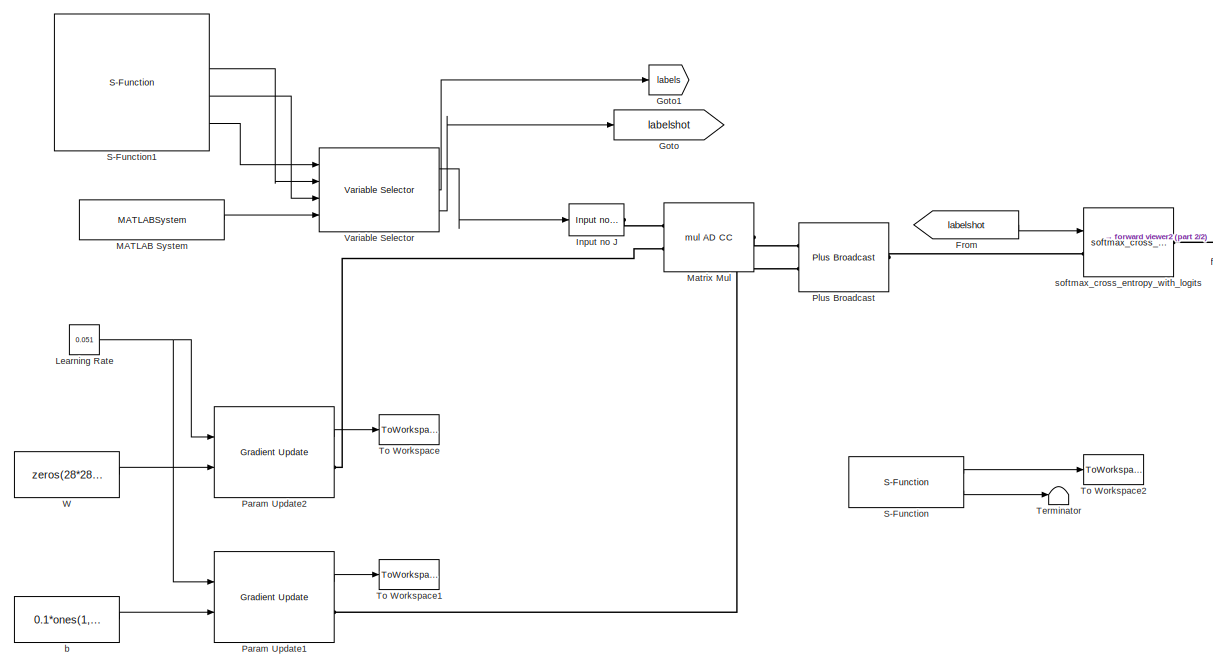
[diagram: root canvas - part 1/2, left side, full height]
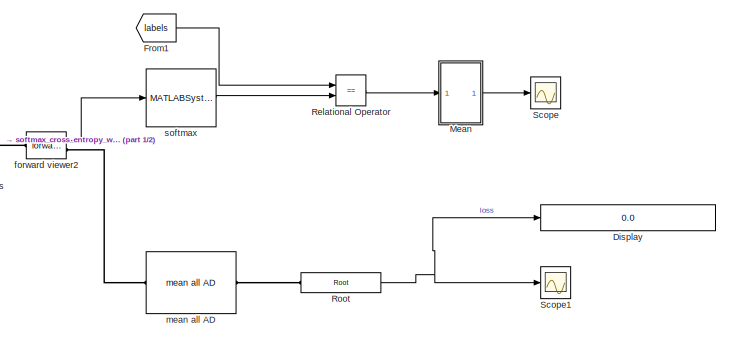
[diagram: root canvas - part 2/2, middle right region]
MODEL slx_6fe8c454d71c
KIND model
CONFIG AbsTol = auto
CONFIG EnableMultiTasking = off
CONFIG FixedStep = 1
CONFIG MaxStep = auto
CONFIG MinStep = auto
CONFIG RelTol = 1e-3
CONFIG SampleTimeConstraint = Unconstrained
CONFIG Solver = FixedStepDiscrete
CONFIG SolverName = FixedStepDiscrete
CONFIG StartTime = 0.0
CONFIG StopTime = 1000
BLOCK [Display] Display
  Decimation = 1
  Ports = [1]
BLOCK [From] From
  GotoTag = labelshot
BLOCK [From] From1
  GotoTag = labels
BLOCK [Goto] Goto
  GotoTag = labelshot
BLOCK [Goto] Goto1
  GotoTag = labels
BLOCK [Reference] Input no J  REF=ad_blocks/Input no J  (lib defined in slx_3af8d3de87d3)
  Ports = [1, 0, 0, 0, 0, 0, 1]
  SourceBlock = ad_blocks/Input no J
BLOCK [Constant] Learning Rate
  OutDataTypeStr = single
  Value = 0.051
BLOCK [MATLABSystem] MATLAB System
  MaskDisplay = disp('MnistSystemInt');\nport_label('output',1,'indices');
  MaskType = MnistSystemInt
  Ports = [0, 1]
  SimulateUsing = Interpreted execution
  System = MnistSystemInt
  items = 100
  trainset = 1
BLOCK [Reference] Matrix Mul  REF=ad_blocks/mul AD CC  (lib defined in slx_3af8d3de87d3)
  Ports = [0, 0, 0, 0, 0, 2, 1]
  SourceBlock = ad_blocks/mul AD CC
  SourceType = SubSystem
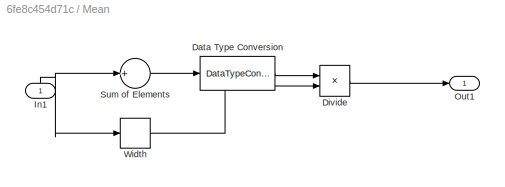
BLOCK [SubSystem] Mean
  Ports = [1, 1]
  RequestExecContextInheritance = off
  Variant = off
BLOCK [DataTypeConversion] Mean/Data Type Conversion
  RndMeth = Floor
  SaturateOnIntegerOverflow = off
BLOCK [Product] Mean/Divide
  InputSameDT = off
  Inputs = */
  OutDataTypeStr = Inherit: Inherit via internal rule
  Ports = [2, 1]
  RndMeth = Floor
  SaturateOnIntegerOverflow = off
BLOCK [Inport] Mean/In1
  IconDisplay = Port number
BLOCK [Outport] Mean/Out1
  IconDisplay = Port number
BLOCK [Sum] Mean/Sum of Elements
  InputSameDT = off
  Inputs = +
  OutDataTypeStr = Inherit: Inherit via internal rule
  Ports = [1, 1]
  SaturateOnIntegerOverflow = off
BLOCK [Width] Mean/Width
  DataType = single
BLOCK [Reference] Param Update1  REF=ad_blocks/Gradient Update  (lib defined in slx_3af8d3de87d3)
  Ports = [2, 1, 0, 0, 0, 0, 1]
  SourceBlock = ad_blocks/Gradient Update
  SourceType = SubSystem
BLOCK [Reference] Param Update2  REF=ad_blocks/Gradient Update  (lib defined in slx_3af8d3de87d3)
  Ports = [2, 1, 0, 0, 0, 0, 1]
  SourceBlock = ad_blocks/Gradient Update
  SourceType = SubSystem
BLOCK [Reference] Plus Broadcast  REF=ad_blocks/Plus Broadcast  (lib defined in slx_3af8d3de87d3)
  Ports = [0, 0, 0, 0, 0, 2, 1]
  SourceBlock = ad_blocks/Plus Broadcast
  SourceType = SubSystem
BLOCK [RelationalOperator] Relational Operator
  InputSameDT = off
  Operator = ==
  OutDataTypeStr = boolean
  Ports = [2, 1]
  RndMeth = Simplest
BLOCK [Reference] Root  REF=ad_blocks/Root  (lib defined in slx_3af8d3de87d3)
  Description = Top level AD block: gets the incoming value, pushes the scalar 1 gradient
  Ports = [0, 1, 0, 0, 0, 1]
  SourceBlock = ad_blocks/Root
BLOCK [S-Function] S-Function
  EnableBusSupport = off
  FunctionName = SyncTime
  Parameters = dt
  Ports = [0, 2]
  Priority = 1024
  SFcnIsStateOwnerBlock = off
  SFunctionDeploymentMode = off
BLOCK [S-Function] S-Function1
  EnableBusSupport = off
  FunctionName = sfun_loadmnist
  Parameters = 1
  Ports = [0, 4]
  SFcnIsStateOwnerBlock = off
  SFunctionDeploymentMode = off
BLOCK [Scope] Scope
  Commented = on
  NumInputPorts = 1
  Ports = [1]
  ScopeSpecificationString = Simulink.scopes.TimeScopeBlockCfg('CurrentConfiguration', extmgr.ConfigurationSet(extmgr.Configuration('Core','General UI',true),extmgr.Configuration('Core','Source UI',true),extmgr.Configuration('Sources','WiredSimulink',true),extmgr.Configuration('Visuals','Time Domain',true,'SerializedDisplays',{struct('MinYLimReal','-0.01625','MaxYLimReal','0.24625','YLabelReal','','MinYLimMag','0.00000','MaxY...<+1350ch>
BLOCK [Scope] Scope1
  Commented = on
  NumInputPorts = 1
  Ports = [1]
  ScopeSpecificationString = Simulink.scopes.TimeScopeBlockCfg('CurrentConfiguration', extmgr.ConfigurationSet(extmgr.Configuration('Core','General UI',true),extmgr.Configuration('Core','Source UI',true),extmgr.Configuration('Sources','WiredSimulink',true,'DataLoggingVariableName','ScopeData1'),extmgr.Configuration('Visuals','Time Domain',true,'SerializedDisplays',{struct('MinYLimReal','-0.05042','MaxYLimReal','2.56403','YLab...<+1389ch>
BLOCK [Terminator] Terminator
BLOCK [ToWorkspace] To Workspace
  FixptAsFi = on
  MaxDataPoints = inf
  Ports = [1]
  SampleTime = -1
  Save2DSignal = 3-D array (concatenate along third dimension)
  SaveFormat = Timeseries
  VariableName = Wout
BLOCK [ToWorkspace] To Workspace1
  FixptAsFi = on
  MaxDataPoints = inf
  Ports = [1]
  SampleTime = -1
  Save2DSignal = 3-D array (concatenate along third dimension)
  SaveFormat = Timeseries
  VariableName = bout
BLOCK [ToWorkspace] To Workspace2
  FixptAsFi = on
  MaxDataPoints = inf
  Ports = [1]
  SampleTime = 1
  Save2DSignal = 3-D array (concatenate along third dimension)
  SaveFormat = Structure With Time
  VariableName = realtout
BLOCK [Reference] Variable Selector  REF=dspindex/Variable
Selector
  Ports = [4, 3]
  SourceBlock = dspindex/Variable\nSelector
  SourceProductBaseCode = DS
  SourceProductName = DSP System Toolbox
  SourceType = Variable Selector
BLOCK [Constant] W
  OutDataTypeStr = single
  Value = zeros(28*28,10)
BLOCK [Constant] b
  OutDataTypeStr = single
  Value = 0.1*ones(1,10)
BLOCK [Reference] forward viewer2  REF=ad_blocks/forward viewer  (lib defined in slx_3af8d3de87d3)
  Ports = [0, 1, 0, 0, 0, 1, 1]
  SourceBlock = ad_blocks/forward viewer
BLOCK [Reference] mean all AD  REF=ad_blocks/mean all AD  (lib defined in slx_3af8d3de87d3)
  Ports = [0, 0, 0, 0, 0, 1, 1]
  SourceBlock = ad_blocks/mean all AD
  SourceType = SubSystem
BLOCK [MATLABSystem] softmax
  MaskDisplay = disp('ArgmaxSystemD2');\nport_label('input',1,'x');\nport_label('output',1,'y');
  MaskType = ArgmaxSystemD2
  Ports = [1, 1]
  SimulateUsing = Code generation
  System = ArgmaxSystemD2
BLOCK [Reference] softmax_cross_entropy_with_logits  REF=ad_blocks/softmax_cross_entropy_with_logits  (lib defined in slx_3af8d3de87d3)
  Ports = [1, 0, 0, 0, 0, 1, 1]
  SourceBlock = ad_blocks/softmax_cross_entropy_with_logits
  SourceType = SubSystem
LINE From1:1 -> Relational Operator:1
LINE From:1 -> softmax_cross_entropy_with_logits:1
NET Learning Rate:1 -> Param Update1:1, Param Update2:1
LINE MATLAB System:1 -> Variable Selector:4
LINE Mean/Data Type Conversion:1 -> Mean/Divide:1
LINE Mean/Divide:1 -> Mean/Out1:1
NET Mean/In1:1 -> Mean/Sum of Elements:1, Mean/Width:1
LINE Mean/Sum of Elements:1 -> Mean/Data Type Conversion:1
LINE Mean/Width:1 -> Mean/Divide:2
LINE Mean:1 -> Scope:1
LINE Param Update1:1 -> To Workspace1:1
LINE Param Update2:1 -> To Workspace:1
LINE Relational Operator:1 -> Mean:1
NET Root:1 -> Display:1, Scope1:1
LINE S-Function1:2 -> Variable Selector:2
LINE S-Function1:3 -> Variable Selector:3
LINE S-Function1:4 -> Variable Selector:1
LINE S-Function:1 -> To Workspace2:1
LINE S-Function:2 -> Terminator:1
LINE Variable Selector:1 -> Input no J:1
LINE Variable Selector:2 -> Goto1:1
LINE Variable Selector:3 -> Goto:1
LINE W:1 -> Param Update2:2
LINE b:1 -> Param Update1:2
LINE forward viewer2:1 -> softmax:1
LINE softmax:1 -> Relational Operator:2
PLINE Input no J:RConn1 -- Matrix Mul:LConn1
PLINE Matrix Mul:LConn2 -- Param Update2:RConn1
PLINE Matrix Mul:RConn1 -- Plus Broadcast:LConn1
PLINE Param Update1:RConn1 -- Plus Broadcast:LConn2
PLINE Plus Broadcast:RConn1 -- softmax_cross_entropy_with_logits:LConn1
PLINE Root:LConn1 -- mean all AD:RConn1
PLINE forward viewer2:LConn1 -- softmax_cross_entropy_with_logits:RConn1
PLINE forward viewer2:RConn1 -- mean all AD:LConn1
note: NET lines group one-source signal fan-out (src -> all destinations, sorted); 1:1 wires keep LINE
